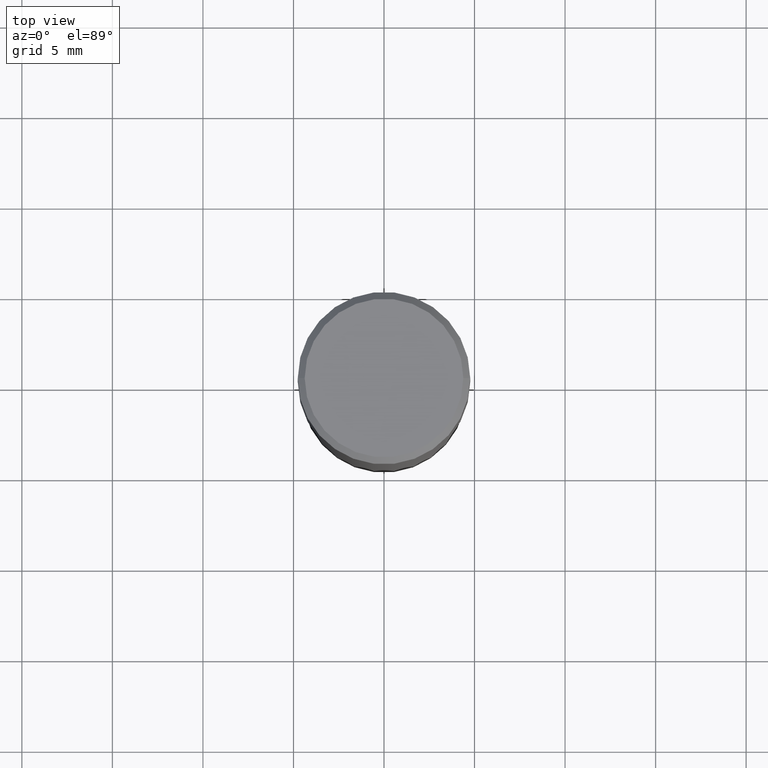
[diagram: clean part render]
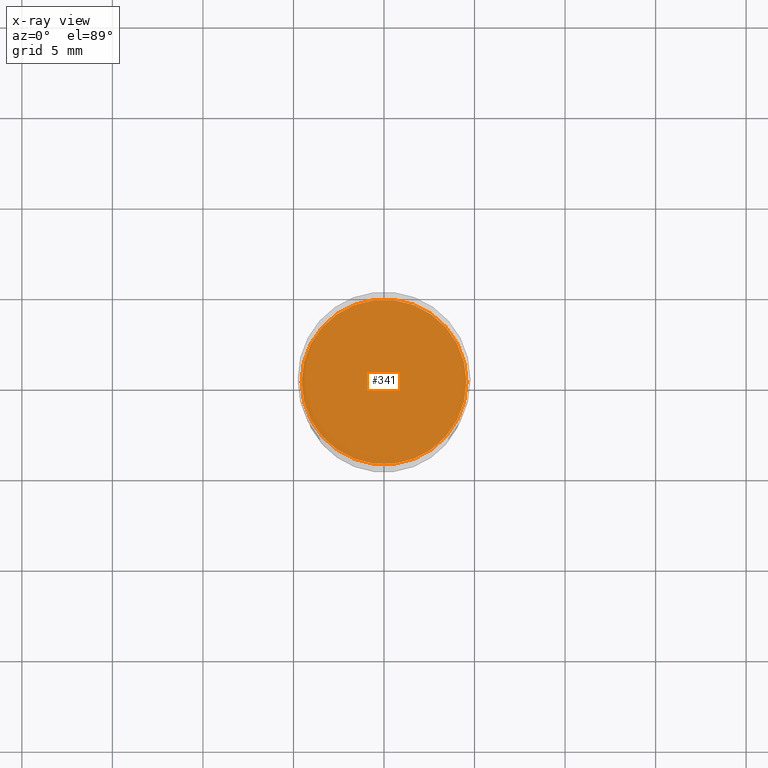
[diagram: x-ray — body ghosted, one internal face saturated and labeled with its STEP entity id]
A machine part, top view, then the same camera in x-ray: the body is ghosted and one INTERNAL B-rep face — a face not visible from any outside direction — is saturated and labeled: STEP entity #341.
In plain terms, the highlighted planar face has unit normal (-0, 0, 1).
Its self-contained STEP definition (entity closure, byte-faithful):
#5 = CIRCLE ( 'NONE', #106, 0.1791999999999999982 ) ;
#15 = CARTESIAN_POINT ( 'NONE',  ( 1.222734403092568719E-29, -1.745740669421573186E-15, -0.5000000000000001110 ) ) ;
#21 = ORIENTED_EDGE ( 'NONE', *, *, #115, .F. ) ;
#43 = DIRECTION ( 'NONE',  ( -2.438088387897960049E-29, 3.491481338843145188E-15, 1.000000000000000000 ) ) ;
#74 = CIRCLE ( 'NONE', #369, 0.1791999999999999982 ) ;
#80 = DIRECTION ( 'NONE',  ( 1.000000000000000000, -6.982962677686265922E-15, 4.876176775795935793E-29 ) ) ;
#97 = EDGE_CURVE ( 'NONE', #346, #404, #5, .T. ) ;
#106 = AXIS2_PLACEMENT_3D ( 'NONE', #461, #273, #130 ) ;
#115 = EDGE_CURVE ( 'NONE', #404, #346, #74, .T. ) ;
#130 = DIRECTION ( 'NONE',  ( 1.000000000000000000, -6.982962677686266711E-15, 0.000000000000000000 ) ) ;
#251 = AXIS2_PLACEMENT_3D ( 'NONE', #15, #43, #80 ) ;
#273 = DIRECTION ( 'NONE',  ( -2.445468806185136597E-29, 3.491481338843145583E-15, 1.000000000000000000 ) ) ;
#299 = ORIENTED_EDGE ( 'NONE', *, *, #97, .F. ) ;
#317 = CARTESIAN_POINT ( 'NONE',  ( -0.1791999999999999982, -4.697988597653629576E-16, -0.5000000000000001110 ) ) ;
#321 = EDGE_LOOP ( 'NONE', ( #299, #21 ) ) ;
#341 = ADVANCED_FACE ( 'NONE', ( #378 ), #414, .F. ) ;
#346 = VERTEX_POINT ( 'NONE', #373 ) ;
#369 = AXIS2_PLACEMENT_3D ( 'NONE', #384, #377, #452 ) ;
#373 = CARTESIAN_POINT ( 'NONE',  ( 0.1791999999999999982, -2.997087581262952106E-15, -0.5000000000000001110 ) ) ;
#377 = DIRECTION ( 'NONE',  ( -2.445468806185136597E-29, 3.491481338843145583E-15, 1.000000000000000000 ) ) ;
#378 = FACE_OUTER_BOUND ( 'NONE', #321, .T. ) ;
#384 = CARTESIAN_POINT ( 'NONE',  ( 1.222734403092568719E-29, -1.745740669421573186E-15, -0.5000000000000001110 ) ) ;
#404 = VERTEX_POINT ( 'NONE', #317 ) ;
#414 = PLANE ( 'NONE',  #251 ) ;
#452 = DIRECTION ( 'NONE',  ( 1.000000000000000000, -6.982962677686266711E-15, 0.000000000000000000 ) ) ;
#461 = CARTESIAN_POINT ( 'NONE',  ( 1.222734403092568719E-29, -1.745740669421573186E-15, -0.5000000000000001110 ) ) ;